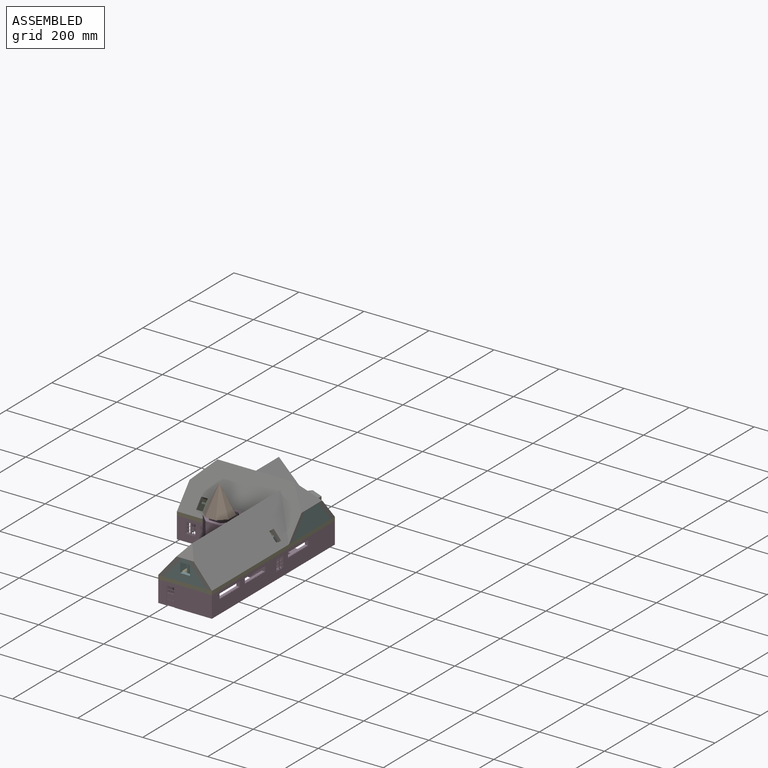
[diagram: assembled view]
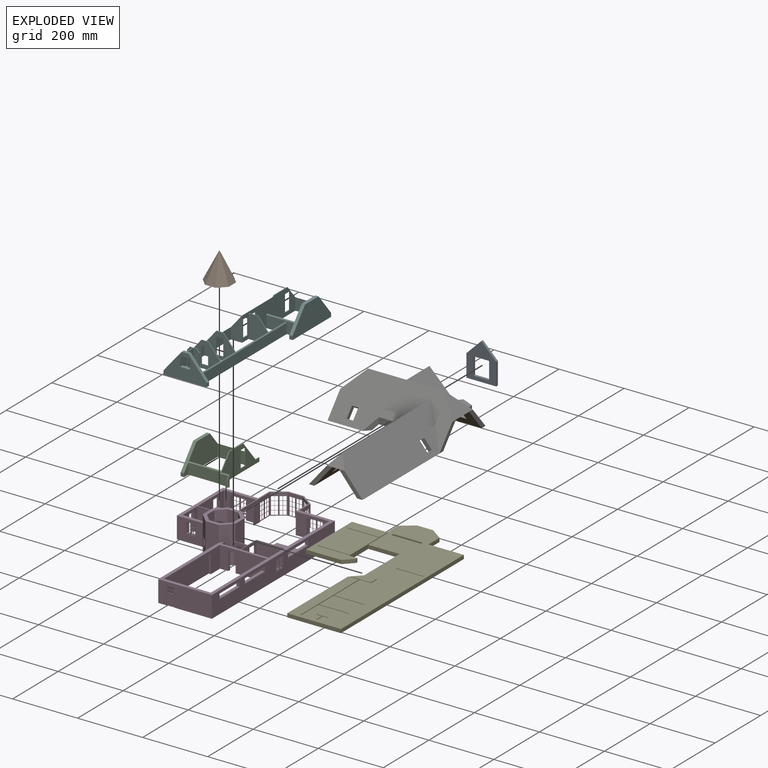
[diagram: exploded view]
GUIDED TOUR — MATED ASSEMBLY (Onshape document e0acd4be3caa2f9272376ea6, AutoMate assembly e0acd4be3caa2f9272376ea6_49c1ba06498c0838a5989e09_3f779cf11e78ffa22484c0a7_default)

This assembly has 7 components, labeled P0..P6 below (a component is one placed occurrence of a part; the same part can appear more than once), held together by 6 mates. A mate is a constraint between two components; its type names the relative motion it leaves free:
  FASTENED — locks the two components together rigidly (no relative motion),
  SLIDER — leaves translation along the listed axis free.
Axis/direction vectors are unit vectors and 'through' points are millimeter coordinates, both in the assembly's world frame.

MATES
  1. FASTENED "Fastened 2": P0 <-> P4, direction (0.000, 0.000, -1.000) through (-275.92, 50.16, 26.25) mm
  2. SLIDER "Slider 2": P6 <-> P3, axis (0.000, 1.000, 0.000) through (-314.66, -482.23, 37.68) mm
  3. FASTENED "Fastened 1": P5 <-> P4, direction (0.000, 0.000, -1.000) through (-313.32, -213.80, 26.25) mm
  4. FASTENED "Fastened 3": P2 <-> P4, direction (0.000, 0.000, 1.000) through (-381.49, 57.78, 37.68) mm
  5. SLIDER "Slider 1": P3 <-> P4, axis (0.000, 0.000, 1.000) through (-314.66, -482.23, 26.25) mm
  6. SLIDER "Slider 3": P1 <-> P3, axis (0.000, 0.000, 1.000) through (-385.39, -185.84, 81.09) mm

ASSEMBLY ORDER
  1. P3 — the base component [order heuristic]
  2. P2 — core [order heuristic]
  3. P6 — core [order heuristic]
  4. P0 [order verified]
  5. P4 [order verified]
  6. P5 [order verified]
  7. P1 [order verified]
(P0, P5 verified with a relaxed clearance tolerance: the source model stores slight part interference there.)
Order-tag legend:
  [order verified] — this step's position reverses a verified removal order: the component was checked to insert without passing through the ones already placed.
  [order heuristic] — the first 3 components form the assembly's core: parts whose collision-free extraction could not be verified, listed in mate-graph order.

Of the 7 components, 1 carries the full construction recipe — the FeatureScript program that regenerates the part's solid from scratch; the rest are supplied as boundary geometry only.
Each toured component is shown spotlighted twice — in the assembled view, then in the exploded view, where a leader line traces a displaced component back to its assembled socket (saturated green if recipe-attached, orange if geometry-only; every other component desaturated gray) — followed by its recipe or geometry summary and the mates that hold it.
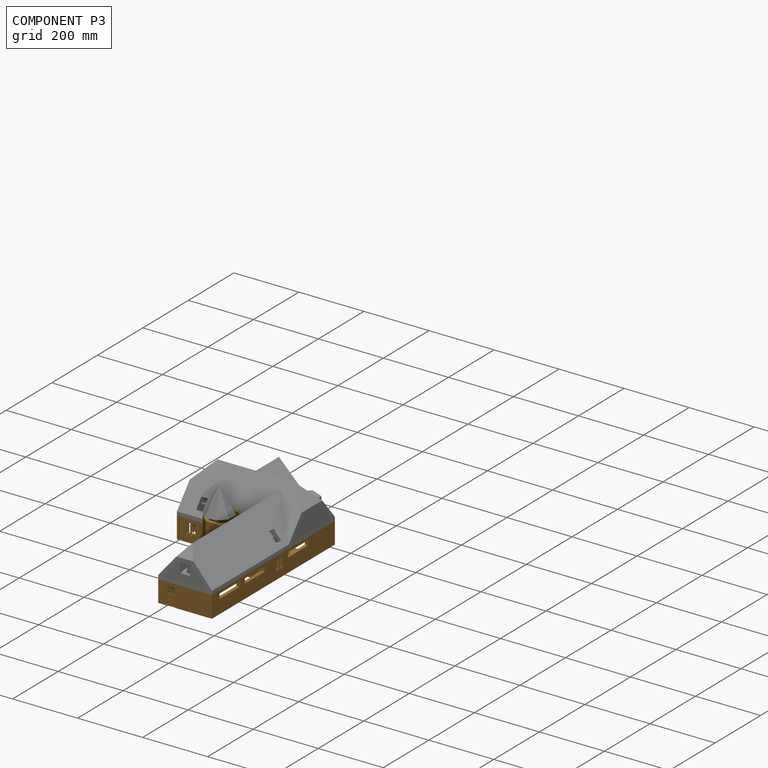
[diagram: component P3 — assembled]
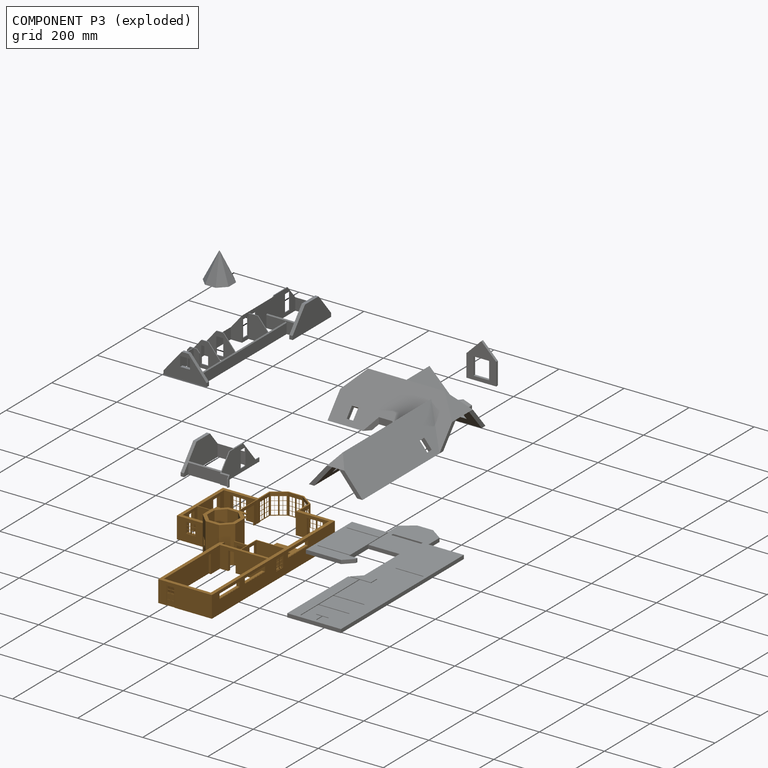
[diagram: component P3 — exploded]
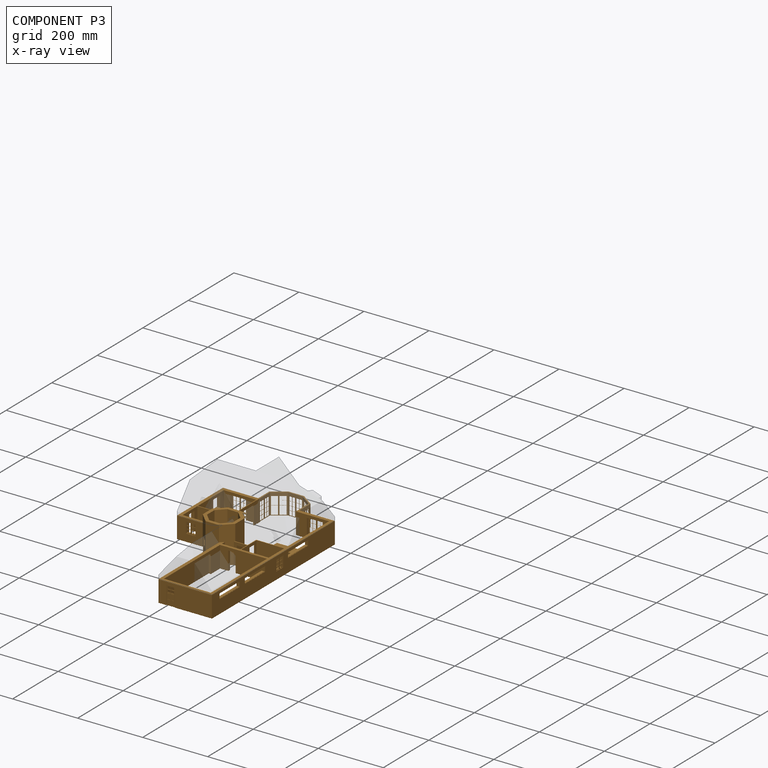
[diagram: component P3 — x-ray view]
COMPONENT P3 — geometry summary (no construction recipe available for this part):
  bounding box: 616.2 x 344.2 x 114.3 mm
  B-rep topology: 1 solid, 1016 faces, 5862 edges
  volume: 1373853 mm^3 (6% of its bounding box)
Held by: SLIDER mate "Slider 2" to P6; SLIDER mate "Slider 1" to P4; SLIDER mate "Slider 3" to P1.
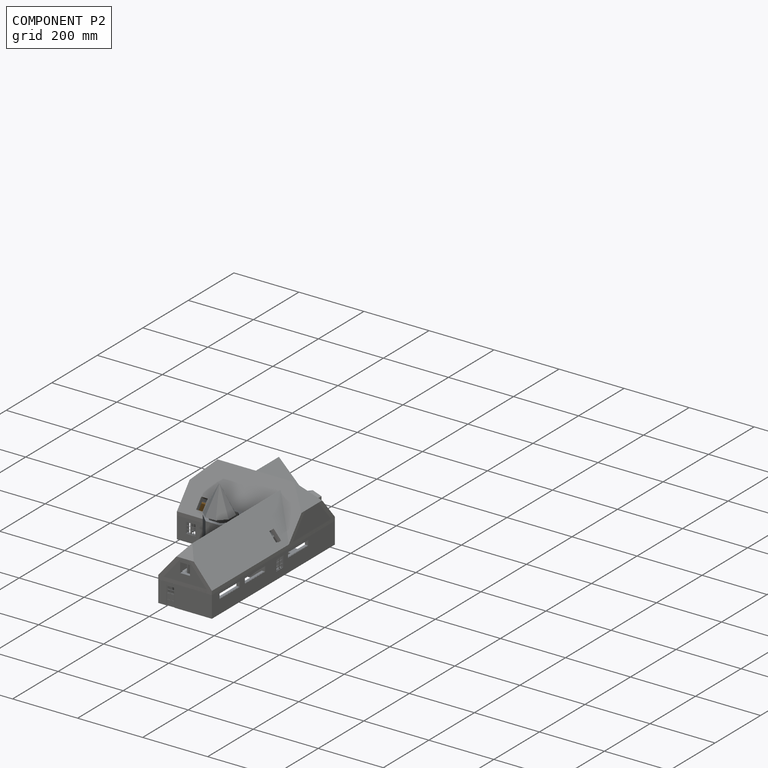
[diagram: component P2 — assembled]
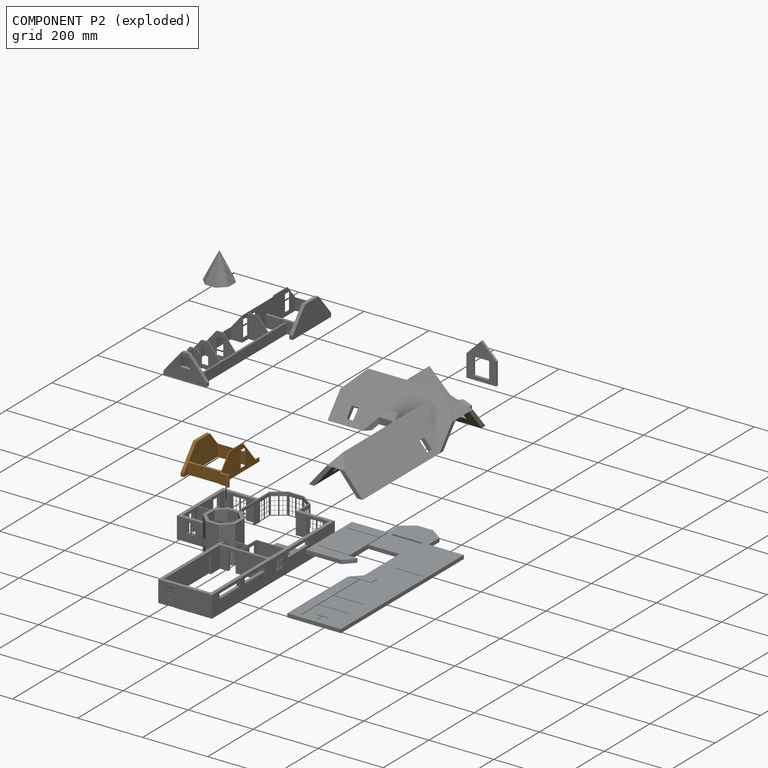
[diagram: component P2 — exploded]
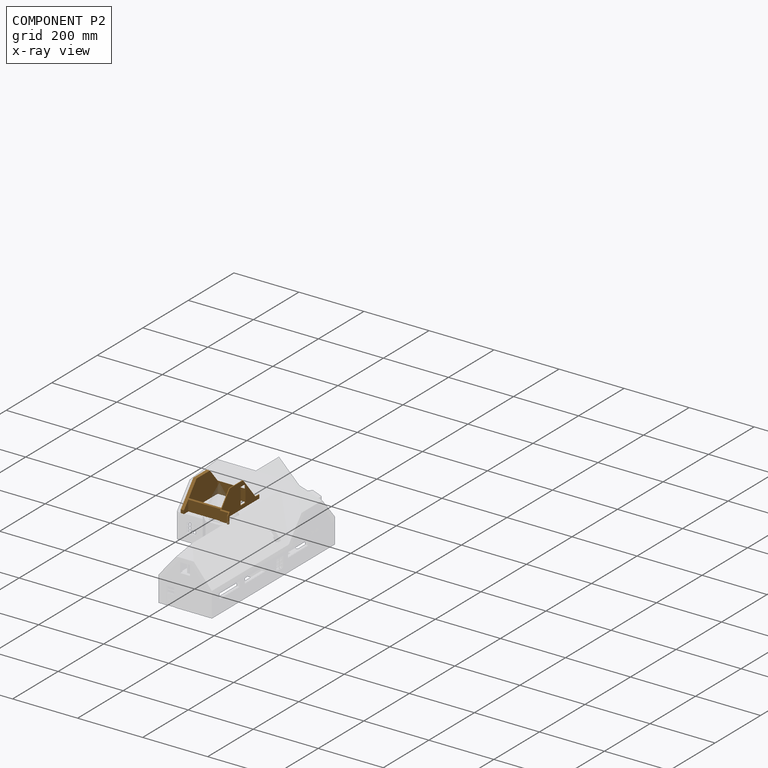
[diagram: component P2 — x-ray view]
COMPONENT P2 — geometry summary (no construction recipe available for this part):
  bounding box: 185.6 x 137.6 x 78.0 mm
  B-rep topology: 1 solid, 32 faces, 186 edges
  volume: 137947 mm^3 (7% of its bounding box)
Held by: FASTENED mate "Fastened 3" to P4.
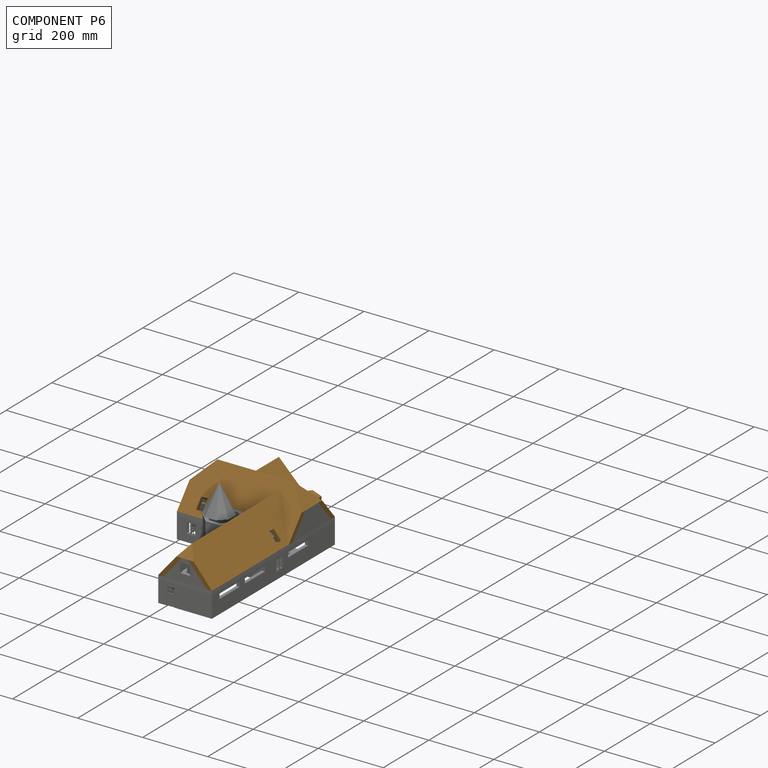
[diagram: component P6 — assembled]
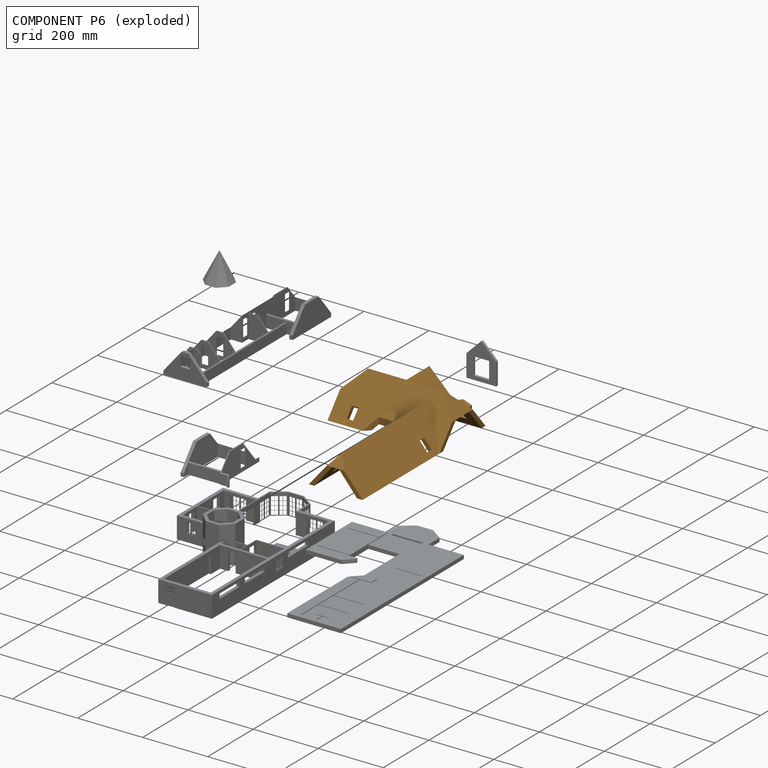
[diagram: component P6 — exploded]
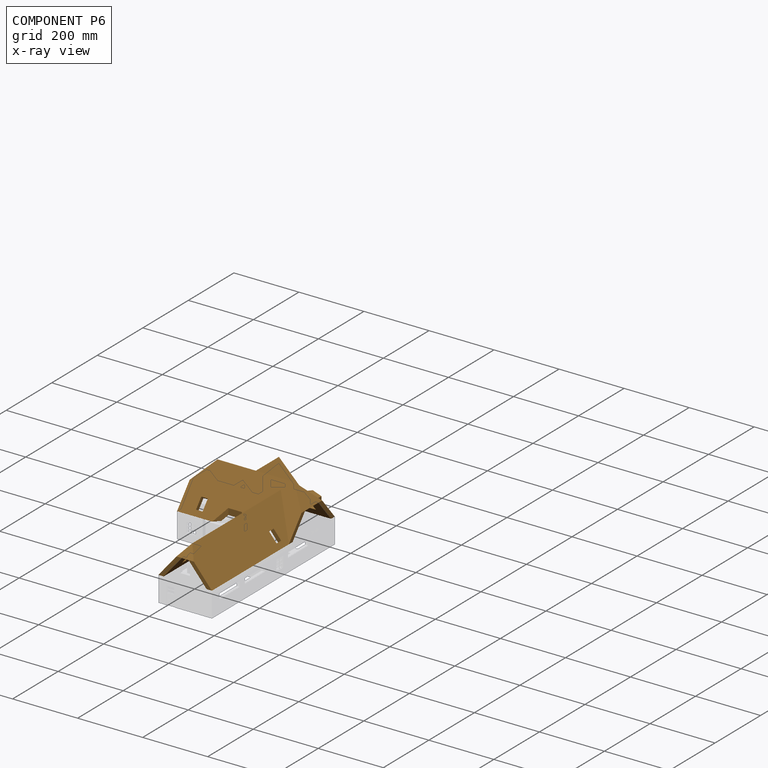
[diagram: component P6 — x-ray view]
COMPONENT P6 — geometry summary (no construction recipe available for this part):
  bounding box: 540.0 x 344.2 x 120.5 mm
  B-rep topology: 1 solid, 84 faces, 454 edges
  volume: 2194101 mm^3 (10% of its bounding box)
Held by: SLIDER mate "Slider 2" to P3.
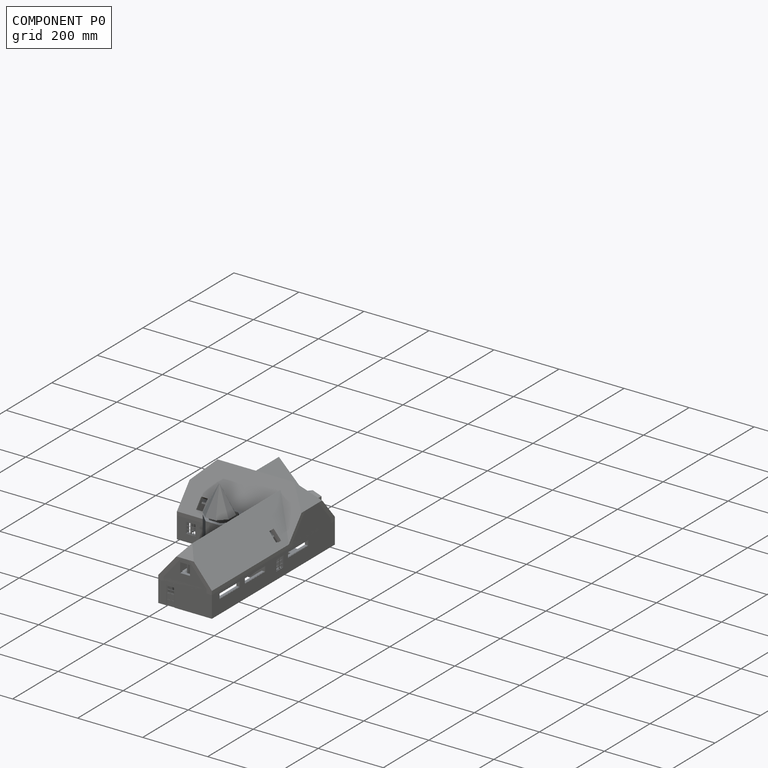
[diagram: component P0 — assembled]
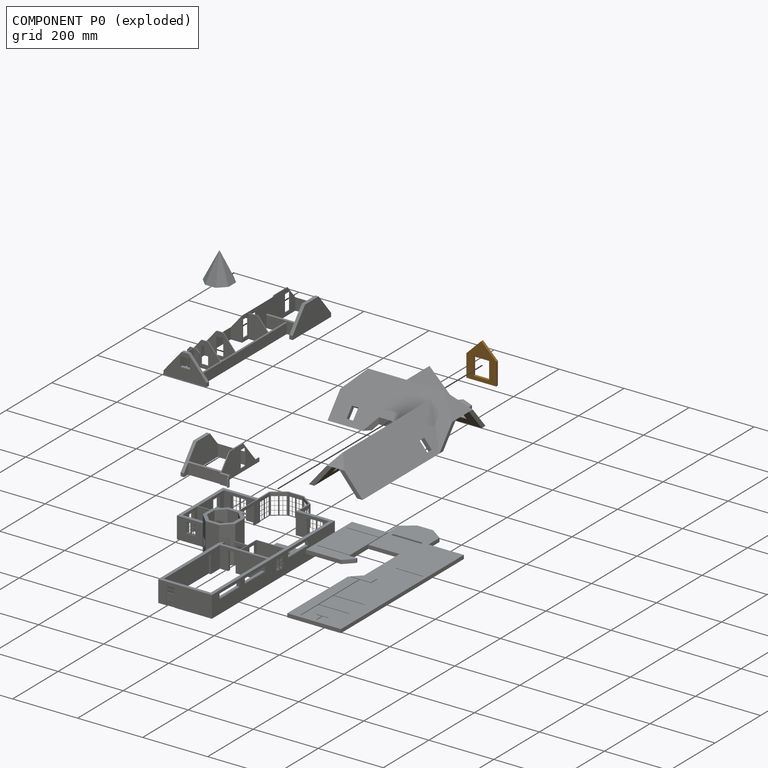
[diagram: component P0 — exploded]
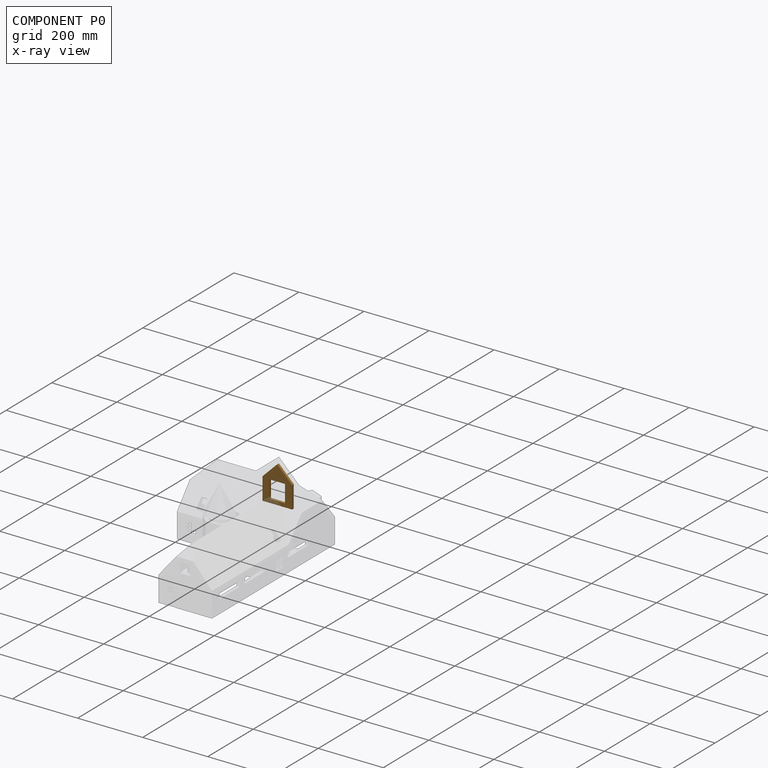
[diagram: component P0 — x-ray view]
COMPONENT P0 — geometry summary (no construction recipe available for this part):
  bounding box: 113.9 x 91.4 x 7.6 mm
  B-rep topology: 1 solid, 11 faces, 54 edges
  volume: 43698 mm^3 (55% of its bounding box)
  symmetry: 2-fold rotationally symmetric about the z axis; mirror-symmetric across its x mid-plane, y mid-plane
Held by: FASTENED mate "Fastened 2" to P4.
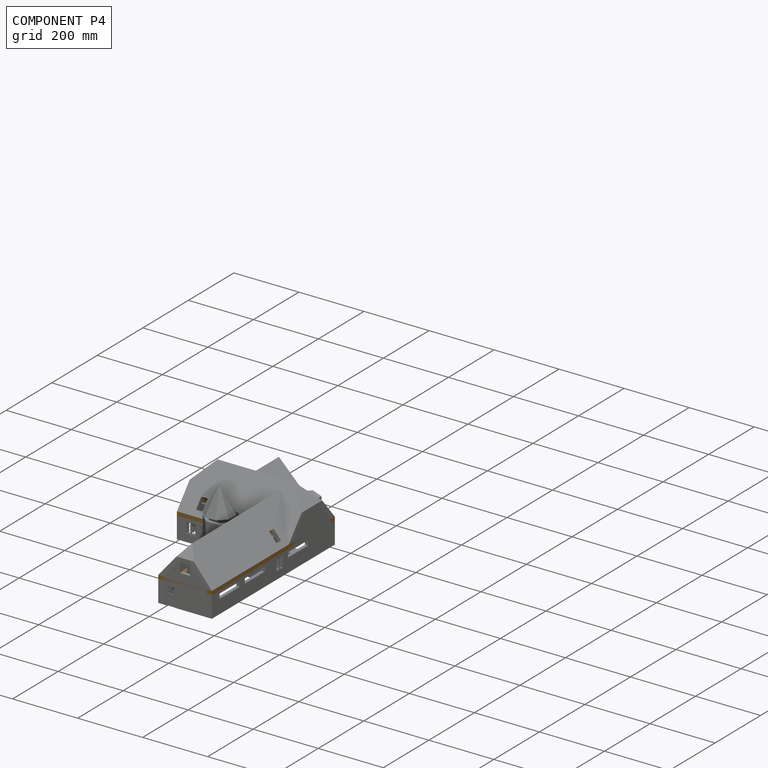
[diagram: component P4 — assembled]
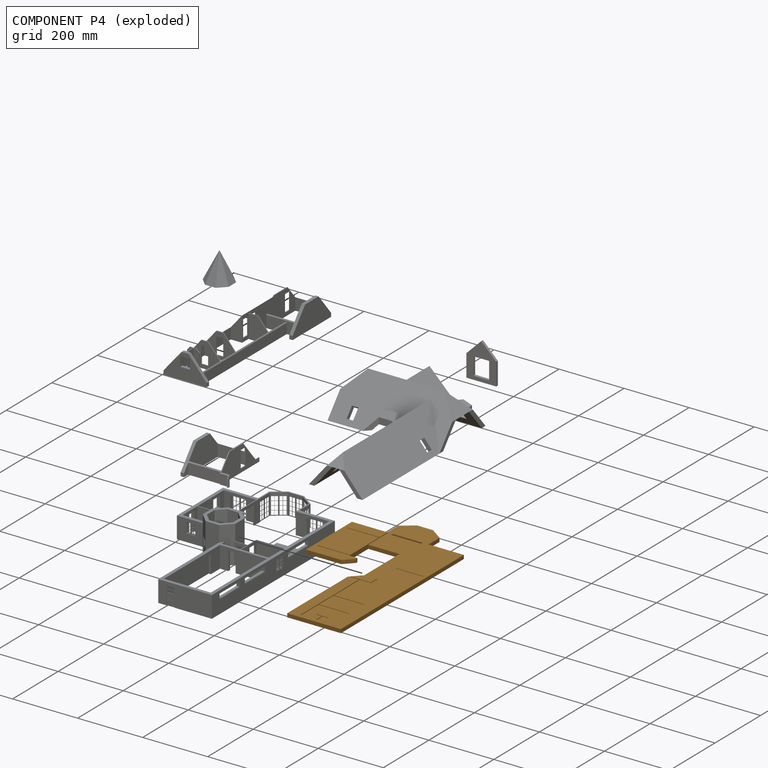
[diagram: component P4 — exploded]
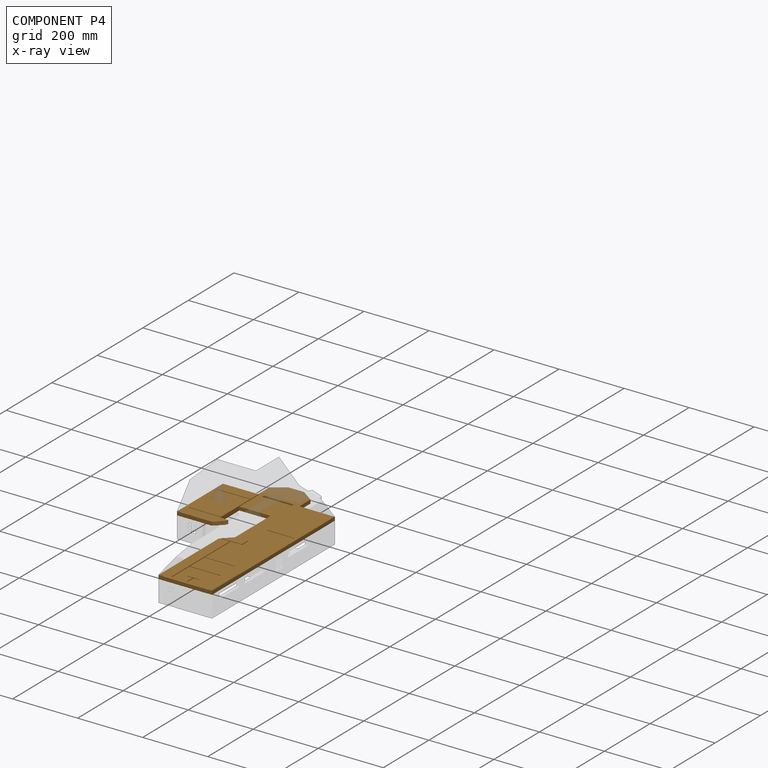
[diagram: component P4 — x-ray view]
COMPONENT P4 — geometry summary (no construction recipe available for this part):
  bounding box: 616.2 x 344.2 x 11.4 mm
  B-rep topology: 1 solid, 68 faces, 396 edges
  volume: 1353232 mm^3 (56% of its bounding box)
  symmetry: mirror-symmetric across its z mid-plane
Held by: FASTENED mate "Fastened 2" to P0; FASTENED mate "Fastened 1" to P5; FASTENED mate "Fastened 3" to P2; SLIDER mate "Slider 1" to P3.
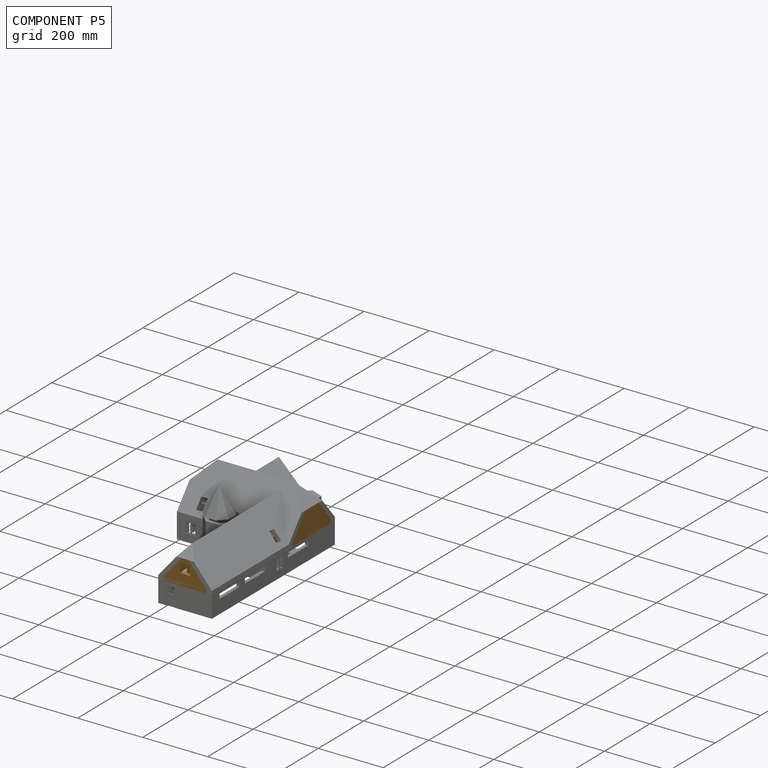
[diagram: component P5 — assembled]
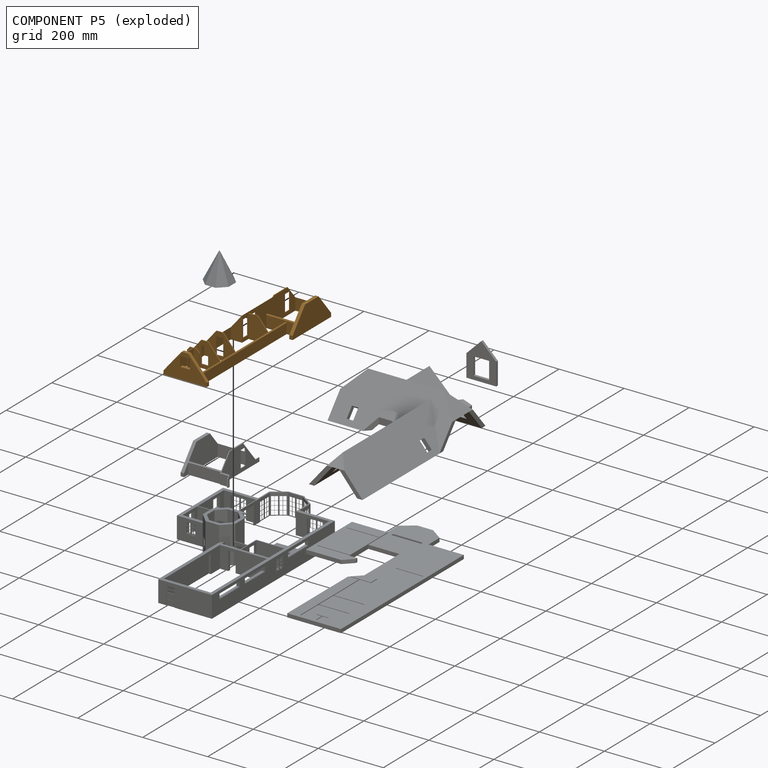
[diagram: component P5 — exploded]
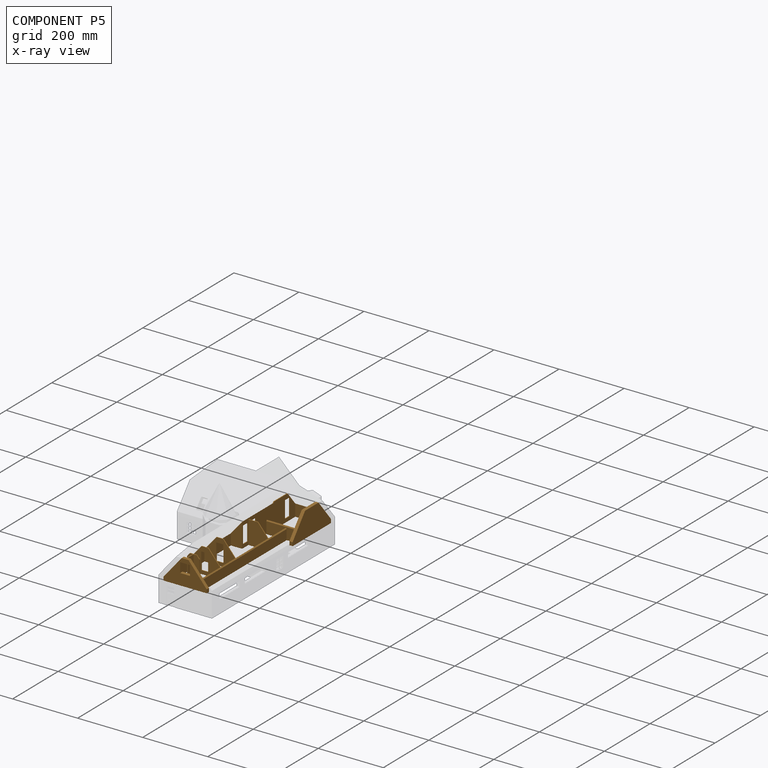
[diagram: component P5 — x-ray view]
COMPONENT P5 — geometry summary (no construction recipe available for this part):
  bounding box: 523.4 x 163.8 x 78.0 mm
  B-rep topology: 1 solid, 88 faces, 556 edges
  volume: 309152 mm^3 (5% of its bounding box)
Held by: FASTENED mate "Fastened 1" to P4.
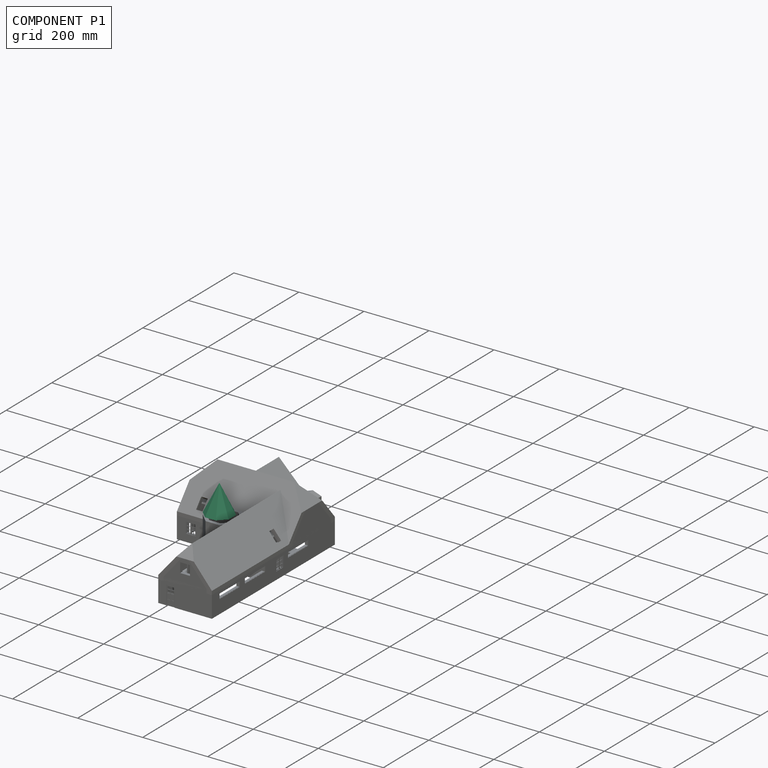
[diagram: component P1 — assembled]
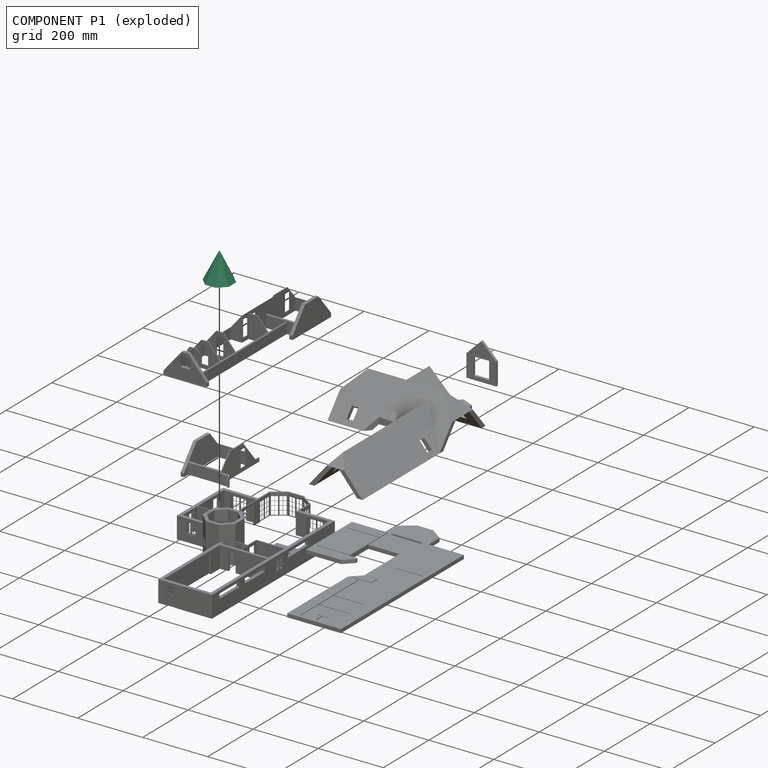
[diagram: component P1 — exploded]
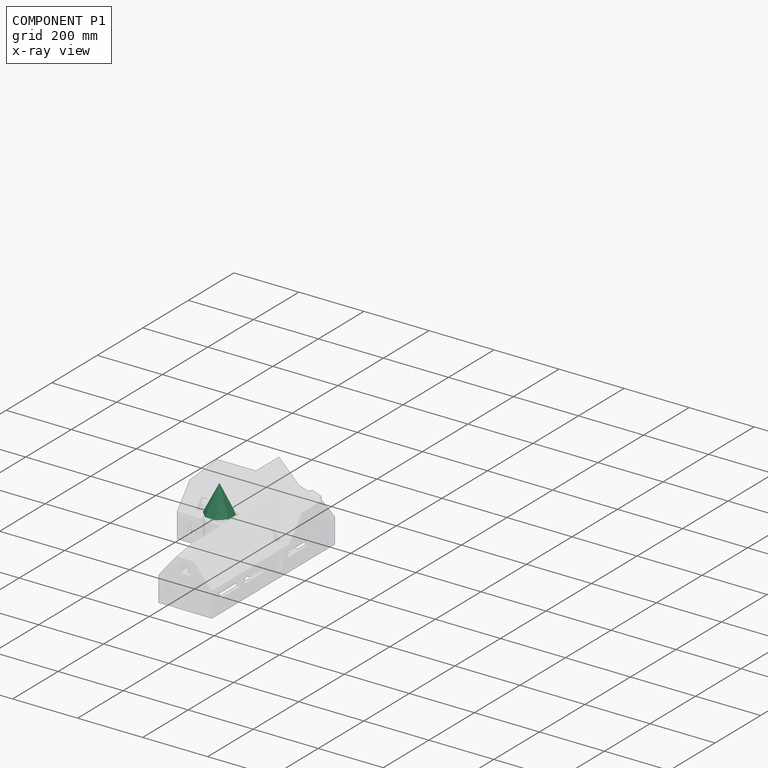
[diagram: component P1 — x-ray view]
COMPONENT P1 — recipe-attached (CADFS 00197828, mesh-verified: the recipe's output STEP matches this component's geometry to below the mesh-comparison resolution (tessellation chordal tolerance ~0.211 mm)).
Held by: SLIDER mate "Slider 3" to P3.
Construction recipe (FeatureScript — the CAD program that rebuilds this solid; sketch coordinates are in the units given by the * unit suffixes, e.g. mm):

FeatureScript 1511;
import(path : "onshape/std/geometry.fs", version : "1511.0");
import(path : "onshape/std/common.fs", version : "1511.0");
const mm = millimeter;
const VERTEX = EntityType.VERTEX;
const EDGE = EntityType.EDGE;
const FACE = EntityType.FACE;
const BODY = EntityType.BODY;
function v(x, y){return vector(x, y);}
function OD(order){return orderDisambiguation(order);}
function OSD(set){return originalSetDisambiguation(set);}
function TD(topology){return topologyDisambiguation(topology);}
function TDD(query){return trueDependencyDisambiguation(query);}
function sQuery(a, b, c) {return sketchEntityQuery(a, b, c);}

annotation { "Feature Type Name" : "Feature", "Feature Type Description" : "" }
export const myFeature = defineFeature(function(context is Context, id is Id, definition is map)
    precondition{}
    {
        {
            var Q0;
            Q0=qCreatedBy(makeId("Top.planeOp"),FACE);
            var sketch = newSketch(context, id + "F0", { "sketchPlane" : qUnion([Q0])});
            skCircle(sketch, "E0.cCircle", {"center": v(0, 0) * mm, "radius": 39.86 * mm, "construction": true});
            skLineSegment(sketch, "E0.0", {"start": v(-16.51, 39.86) * mm, "end": v(16.51, 39.86) * mm});
            skLineSegment(sketch, "E0.1", {"start": v(16.51, 39.86) * mm, "end": v(39.86, 16.51) * mm});
            skLineSegment(sketch, "E0.2", {"start": v(39.86, 16.51) * mm, "end": v(39.86, -16.51) * mm});
            skLineSegment(sketch, "E0.3", {"start": v(39.86, -16.51) * mm, "end": v(16.51, -39.86) * mm});
            skLineSegment(sketch, "E0.4", {"start": v(16.51, -39.86) * mm, "end": v(-16.51, -39.86) * mm});
            skLineSegment(sketch, "E0.5", {"start": v(-16.51, -39.86) * mm, "end": v(-39.86, -16.51) * mm});
            skLineSegment(sketch, "E0.6", {"start": v(-39.86, -16.51) * mm, "end": v(-39.86, 16.5) * mm});
            skLineSegment(sketch, "E0.7", {"start": v(-39.86, 16.5) * mm, "end": v(-16.51, 39.86) * mm});
            skPoint(sketch, "E0.0.midPoint", {"position": v(0, 39.86) * mm});
            skCircle(sketch, "E1.cCircle", {"center": v(0, 0) * mm, "radius": 29.7 * mm, "construction": true});
            skLineSegment(sketch, "E1.0", {"start": v(-12.3, 29.7) * mm, "end": v(12.3, 29.7) * mm});
            skLineSegment(sketch, "E1.1", {"start": v(12.3, 29.7) * mm, "end": v(29.7, 12.3) * mm});
            skLineSegment(sketch, "E1.2", {"start": v(29.7, 12.3) * mm, "end": v(29.7, -12.3) * mm});
            skLineSegment(sketch, "E1.3", {"start": v(29.7, -12.3) * mm, "end": v(12.3, -29.7) * mm});
            skLineSegment(sketch, "E1.4", {"start": v(12.3, -29.7) * mm, "end": v(-12.3, -29.7) * mm});
            skLineSegment(sketch, "E1.5", {"start": v(-12.3, -29.7) * mm, "end": v(-29.7, -12.3) * mm});
            skLineSegment(sketch, "E1.6", {"start": v(-29.7, -12.3) * mm, "end": v(-29.7, 12.3) * mm});
            skLineSegment(sketch, "E1.7", {"start": v(-29.7, 12.3) * mm, "end": v(-12.3, 29.7) * mm});
            skPoint(sketch, "E1.0.midPoint", {"position": v(0, 29.7) * mm});
            skSolve(sketch);
        }
        {
            var Q0;
            Q0 = qSketchRegion(id + "F0", true);
            var Q1;
            Q1=makeQuery(id+"F0.imprint","IMPRINT",FACE,{"disambiguationData":[TD([[makeQuery(id+"F0.imprint","IMPRINT",EDGE,{"derivedFrom":sQuery(id+"F0.wireOp",EDGE,"E1.0")}),-1.0]])]});
            extrude(context, id + "F1", {"entities" : qUnion([Q0, Q1]), "depth" : 83.82 * mm, "hasDraft" : true, "draftAngle" : 25 * degree, "draftPullDirection" : true});
        }
        {
            var Q0;
            Q0=qCreatedBy(makeId("Top.planeOp"),FACE);
            var sketch = newSketch(context, id + "F2", { "sketchPlane" : qUnion([Q0])});
            skCircle(sketch, "E2.cCircle", {"center": v(0, 0) * mm, "radius": 29.7 * mm, "construction": true});
            skLineSegment(sketch, "E2.0", {"start": v(29.7, 12.3) * mm, "end": v(29.7, -12.3) * mm});
            skLineSegment(sketch, "E2.1", {"start": v(29.7, -12.3) * mm, "end": v(12.3, -29.7) * mm});
            skLineSegment(sketch, "E2.2", {"start": v(12.3, -29.7) * mm, "end": v(-12.3, -29.7) * mm});
            skLineSegment(sketch, "E2.3", {"start": v(-12.3, -29.7) * mm, "end": v(-29.7, -12.3) * mm});
            skLineSegment(sketch, "E2.4", {"start": v(-29.7, -12.3) * mm, "end": v(-29.7, 12.3) * mm});
            skLineSegment(sketch, "E2.5", {"start": v(-29.7, 12.3) * mm, "end": v(-12.3, 29.7) * mm});
            skLineSegment(sketch, "E2.6", {"start": v(-12.3, 29.7) * mm, "end": v(12.3, 29.7) * mm});
            skLineSegment(sketch, "E2.7", {"start": v(12.3, 29.7) * mm, "end": v(29.7, 12.3) * mm});
            skPoint(sketch, "E2.0.midPoint", {"position": v(29.7, 0) * mm});
            skSolve(sketch);
        }
        {
            var Q0;
            Q0 = qSketchRegion(id + "F2", true);
            extrude(context, id + "F3", {"entities" : qUnion([Q0]), "operationType" : NewBodyOperationType.REMOVE, "depth" : 63.5 * mm, "hasDraft" : true, "draftAngle" : 25 * degree, "draftPullDirection" : true});
        }
    });
PROVENANCE & LICENSES
Assembly (occurrences, transforms, mates, per-part STEP geometry): AutoMate dataset, Zenodo record 7776208, CC0.
Construction recipes: CADFS (HuggingFace VladPyatov/CADFS, CC-BY-4.0, layered over the ABC dataset), FeatureScript reconstruction programs keyed by ABC model id.
Join: ABC meta listings map ABC model id -> Onshape documentId; within a shared document, parts are matched by geometric signature (bounding-box dims + volume at 0.1% relative tolerance, exact B-rep face/solid counts).
Verification: 1 of this assembly's 7 components carries a recipe attachment, and every attachment is mesh-verified: the CADFS STEP and the AutoMate member STEP were compared as meshes in their shared local frame (symmetric sampled-point-to-mesh distance); worst across the 1 attachment: below the mesh-comparison resolution (tessellation chordal tolerance ~0.211 mm) on a 140 mm part.
Renders: orthographic iso camera (az 35 / el 25); the floor grid conveys scale (grid pitch printed in each image; no ruler). In the exploded view each component is displaced by its stored offset vector: the offsets alone carry the explosion direction (mate normal/axis signs are not orientation cues and do not encode it), and separation distances are assigned per mate-chain, not proportionally to assembly-order depth.
